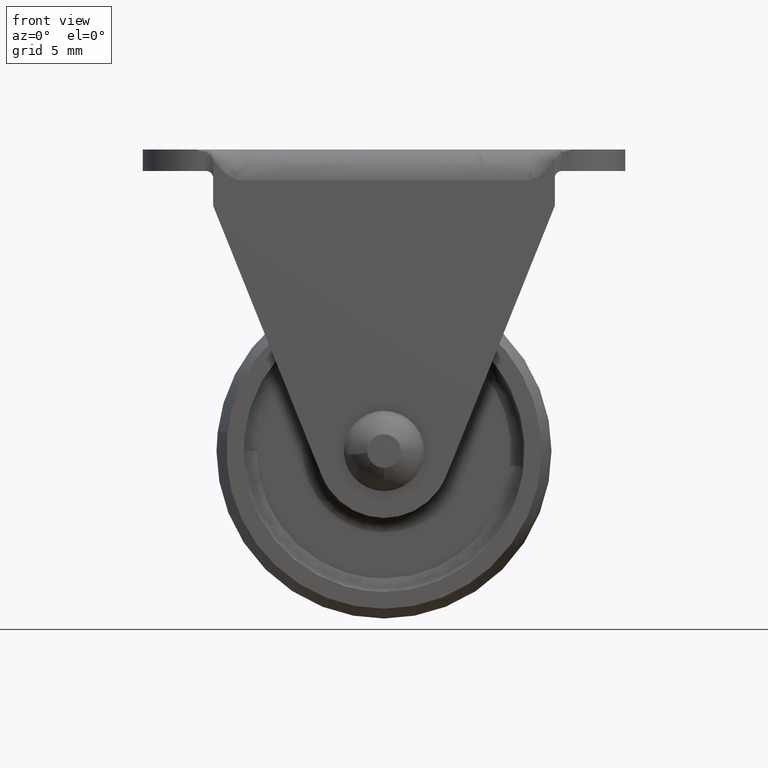
[diagram: clean part render]
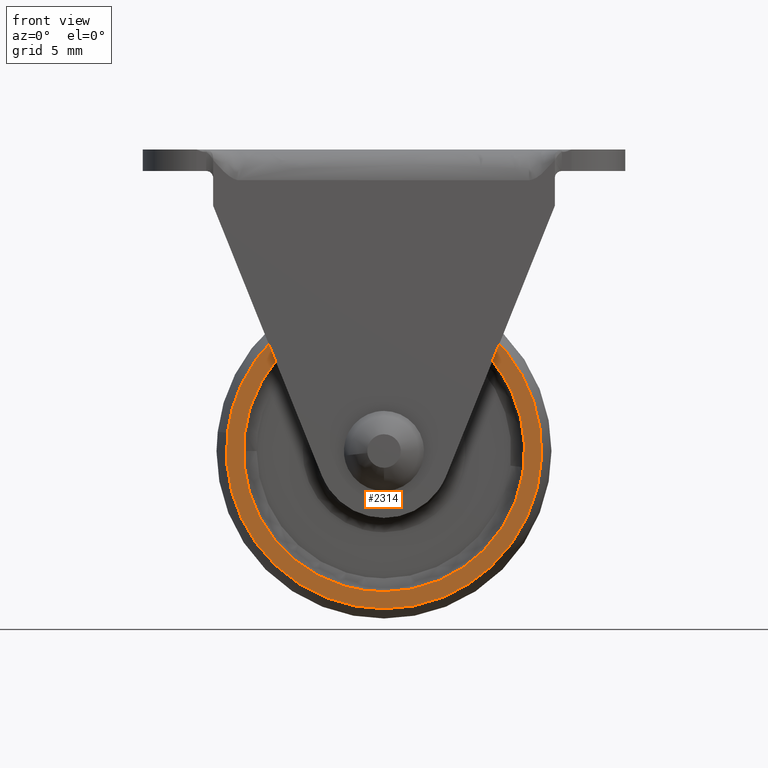
[diagram: same view with one face highlighted and labeled with its STEP entity id]
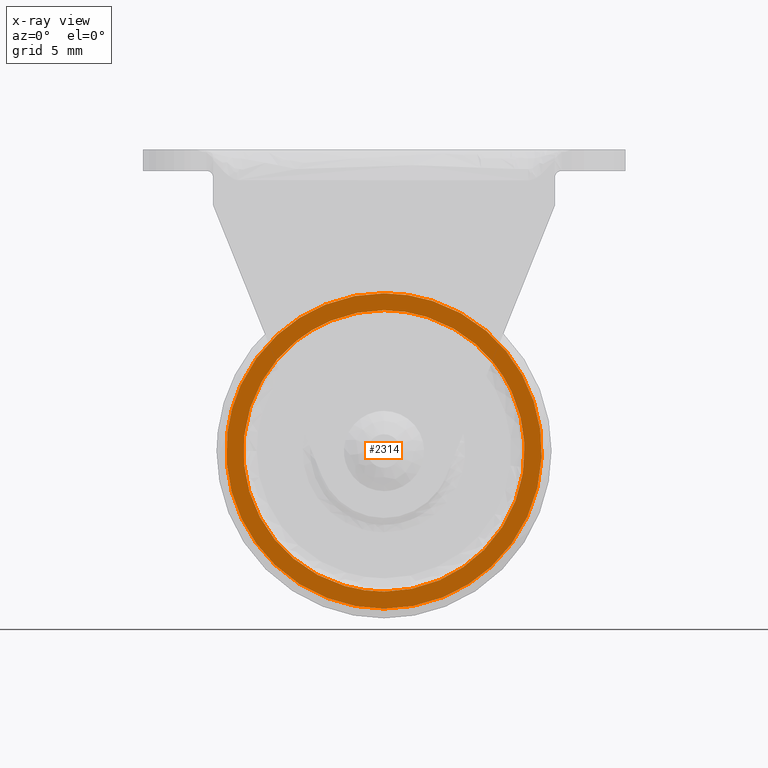
[diagram: x-ray of the same camera — body ghosted, the highlighted face saturated]
A machine part, front view. The second image highlights one B-rep face of the part: STEP entity #2314.
The next image is the same camera in x-ray: the body ghosted, the highlighted face saturated — about 0% of this face is hidden behind the body in this view.
In plain terms, the highlighted face is a freeform B-spline surface patch.
Its self-contained STEP definition (entity closure, byte-faithful):
#83=CARTESIAN_POINT('',(-6.536402454971885,-5.999999999999920,8.217386625115982));
#84=VERTEX_POINT('',#83);
#90=CARTESIAN_POINT('',(0.0,-5.999999999999920,-10.500000000000000));
#91=VERTEX_POINT('',#90);
#92=CARTESIAN_POINT('',(-6.536402454971885,-5.999999999999920,8.217386625115982));
#93=CARTESIAN_POINT('',(-10.499999999999998,-5.999999999999919,5.064599747028038));
#94=CARTESIAN_POINT('',(-10.500000000000000,-5.999999999999920,-8.061993E-016));
#95=CARTESIAN_POINT('',(-10.500000000000000,-5.999999999999919,-10.500000000000000));
#96=CARTESIAN_POINT('',(0.0,-5.999999999999920,-10.500000000000000));
#104=(BOUNDED_CURVE()B_SPLINE_CURVE(2,(#92,#93,#94,#95,#96),.UNSPECIFIED.,.F.,.U.)B_SPLINE_CURVE_WITH_KNOTS((3,2,3),(0.607863854738357,0.750000000000000,1.0),.UNSPECIFIED.)CURVE()GEOMETRIC_REPRESENTATION_ITEM()RATIONAL_B_SPLINE_CURVE((0.856305625920688,0.833477147618323,1.0,0.707106781186547,1.0))REPRESENTATION_ITEM(''));
#105=EDGE_CURVE('',#84,#91,#104,.T.);
#107=CARTESIAN_POINT('',(8.217386665545103,-5.999999999999920,6.536402404145482));
#108=VERTEX_POINT('',#107);
#109=CARTESIAN_POINT('',(0.0,-5.999999999999920,-10.500000000000000));
#110=CARTESIAN_POINT('',(10.500000000000000,-5.999999999999919,-10.500000000000000));
#111=CARTESIAN_POINT('',(10.500000000000000,-5.999999999999920,-8.061993E-016));
#112=CARTESIAN_POINT('',(10.500000000000000,-5.999999999999920,3.666763233024723));
#113=CARTESIAN_POINT('',(8.217386665545103,-5.999999999999919,6.536402404145483));
#121=(BOUNDED_CURVE()B_SPLINE_CURVE(2,(#109,#110,#111,#112,#113),.UNSPECIFIED.,.F.,.U.)B_SPLINE_CURVE_WITH_KNOTS((3,2,3),(0.0,0.250000000000000,0.357863853802069),.UNSPECIFIED.)CURVE()GEOMETRIC_REPRESENTATION_ITEM()RATIONAL_B_SPLINE_CURVE((1.0,0.707106781186547,1.0,0.873629634665154,0.856305626221442))REPRESENTATION_ITEM(''));
#122=EDGE_CURVE('',#91,#108,#121,.T.);
#222=CARTESIAN_POINT('',(0.0,-5.999999999999920,10.500000000000000));
#223=VERTEX_POINT('',#222);
#224=CARTESIAN_POINT('',(8.217386665545103,-5.999999999999919,6.536402404145483));
#225=CARTESIAN_POINT('',(5.064599787055338,-5.999999999999920,10.500000000000000));
#226=CARTESIAN_POINT('',(0.0,-5.999999999999920,10.500000000000000));
#234=(BOUNDED_CURVE()B_SPLINE_CURVE(2,(#224,#225,#226),.UNSPECIFIED.,.F.,.U.)B_SPLINE_CURVE_WITH_KNOTS((3,3),(0.357863853802069,0.500000000000000),.UNSPECIFIED.)CURVE()GEOMETRIC_REPRESENTATION_ITEM()RATIONAL_B_SPLINE_CURVE((0.856305626221442,0.833477146521394,1.0))REPRESENTATION_ITEM(''));
#235=EDGE_CURVE('',#108,#223,#234,.T.);
#237=CARTESIAN_POINT('',(0.0,-5.999999999999920,10.500000000000000));
#238=CARTESIAN_POINT('',(-3.666763269457225,-5.999999999999920,10.500000000000002));
#239=CARTESIAN_POINT('',(-6.536402454971885,-5.999999999999920,8.217386625115982));
#247=(BOUNDED_CURVE()B_SPLINE_CURVE(2,(#237,#238,#239),.UNSPECIFIED.,.F.,.U.)B_SPLINE_CURVE_WITH_KNOTS((3,3),(0.500000000000000,0.607863854738357),.UNSPECIFIED.)CURVE()GEOMETRIC_REPRESENTATION_ITEM()RATIONAL_B_SPLINE_CURVE((1.0,0.873629633568224,0.856305625920688))REPRESENTATION_ITEM(''));
#248=EDGE_CURVE('',#223,#84,#247,.T.);
#2129=CARTESIAN_POINT('',(-11.690604284940550,-6.000007551945352,1.358922436081655));
#2130=VERTEX_POINT('',#2129);
#2131=CARTESIAN_POINT('',(0.0,-5.999999999999920,-11.769322000000100));
#2132=VERTEX_POINT('',#2131);
#2133=CARTESIAN_POINT('',(-11.690604284940555,-6.000007551945352,1.358922436081655));
#2134=CARTESIAN_POINT('',(-11.769320289570230,-6.000007357173017,0.681740942817983));
#2135=CARTESIAN_POINT('',(-11.769320340420260,-6.000007138448782,-0.000000192910494));
#2136=CARTESIAN_POINT('',(-11.769321218275984,-6.000003362476066,-11.769322090868153));
#2137=CARTESIAN_POINT('',(0.0,-5.999999999999920,-11.769322000000100));
#2145=(BOUNDED_CURVE()B_SPLINE_CURVE(2,(#2133,#2134,#2135,#2136,#2137),.UNSPECIFIED.,.F.,.U.)B_SPLINE_CURVE_WITH_KNOTS((3,2,3),(0.730000188886447,0.750000000000000,1.0),.UNSPECIFIED.)CURVE()GEOMETRIC_REPRESENTATION_ITEM()RATIONAL_B_SPLINE_CURVE((0.956886489965314,0.976568763789162,1.0,0.707106781186547,1.0))REPRESENTATION_ITEM(''));
#2146=EDGE_CURVE('',#2130,#2132,#2145,.T.);
#2199=CARTESIAN_POINT('',(0.0,-5.999998833072868,11.769322388006040));
#2200=VERTEX_POINT('',#2199);
#2216=CARTESIAN_POINT('',(0.0,-5.999999999999920,-11.769322000000100));
#2217=CARTESIAN_POINT('',(11.769322000000102,-5.999999999999919,-11.769322000000102));
#2218=CARTESIAN_POINT('',(11.769322000000100,-5.999999416536394,0.000000194002968));
#2219=CARTESIAN_POINT('',(11.769322000000102,-5.999998833072868,11.769322388006037));
#2220=CARTESIAN_POINT('',(0.0,-5.999998833072868,11.769322388006040));
#2228=(BOUNDED_CURVE()B_SPLINE_CURVE(2,(#2216,#2217,#2218,#2219,#2220),.UNSPECIFIED.,.F.,.U.)B_SPLINE_CURVE_WITH_KNOTS((3,2,3),(0.0,0.250000000000000,0.500000000000000),.UNSPECIFIED.)CURVE()GEOMETRIC_REPRESENTATION_ITEM()RATIONAL_B_SPLINE_CURVE((1.0,0.707106781186547,1.0,0.707106781186547,1.0))REPRESENTATION_ITEM(''));
#2229=EDGE_CURVE('',#2132,#2200,#2228,.T.);
#2267=CARTESIAN_POINT('',(0.0,-5.999998833072868,11.769322388006040));
#2268=CARTESIAN_POINT('',(-10.480494469299323,-6.000003192509110,11.769322091960625));
#2269=CARTESIAN_POINT('',(-11.690604284940555,-6.000007551945352,1.358922436081655));
#2277=(BOUNDED_CURVE()B_SPLINE_CURVE(2,(#2267,#2268,#2269),.UNSPECIFIED.,.F.,.U.)B_SPLINE_CURVE_WITH_KNOTS((3,3),(0.500000000000000,0.730000188886447),.UNSPECIFIED.)CURVE()GEOMETRIC_REPRESENTATION_ITEM()RATIONAL_B_SPLINE_CURVE((1.0,0.730538017397386,0.956886489965314))REPRESENTATION_ITEM(''));
#2278=EDGE_CURVE('',#2200,#2130,#2277,.T.);
#2298=CARTESIAN_POINT('',(-12.945008637381680,-5.999999999999920,-12.945077683486449));
#2299=CARTESIAN_POINT('',(-12.945008637381680,-5.999999999999920,12.945078281944260));
#2300=CARTESIAN_POINT('',(12.945074590556279,-5.999999999999920,-12.945077683486449));
#2301=CARTESIAN_POINT('',(12.945074590556279,-5.999999999999920,12.945078281944260));
#2302=B_SPLINE_SURFACE_WITH_KNOTS('',1,1,((#2298,#2300),(#2299,#2301)),.UNSPECIFIED.,.F.,.F.,.U.,(2,2),(2,2),(0.0,25.890155965430719),(0.0,25.890083227937961),.UNSPECIFIED.);
#2303=ORIENTED_EDGE('',*,*,#2229,.T.);
#2304=ORIENTED_EDGE('',*,*,#2278,.T.);
#2305=ORIENTED_EDGE('',*,*,#2146,.T.);
#2306=EDGE_LOOP('',(#2303,#2304,#2305));
#2307=FACE_OUTER_BOUND('',#2306,.T.);
#2308=ORIENTED_EDGE('',*,*,#122,.F.);
#2309=ORIENTED_EDGE('',*,*,#105,.F.);
#2310=ORIENTED_EDGE('',*,*,#248,.F.);
#2311=ORIENTED_EDGE('',*,*,#235,.F.);
#2312=EDGE_LOOP('',(#2308,#2309,#2310,#2311));
#2313=FACE_BOUND('',#2312,.T.);
#2314=ADVANCED_FACE('',(#2307,#2313),#2302,.F.);